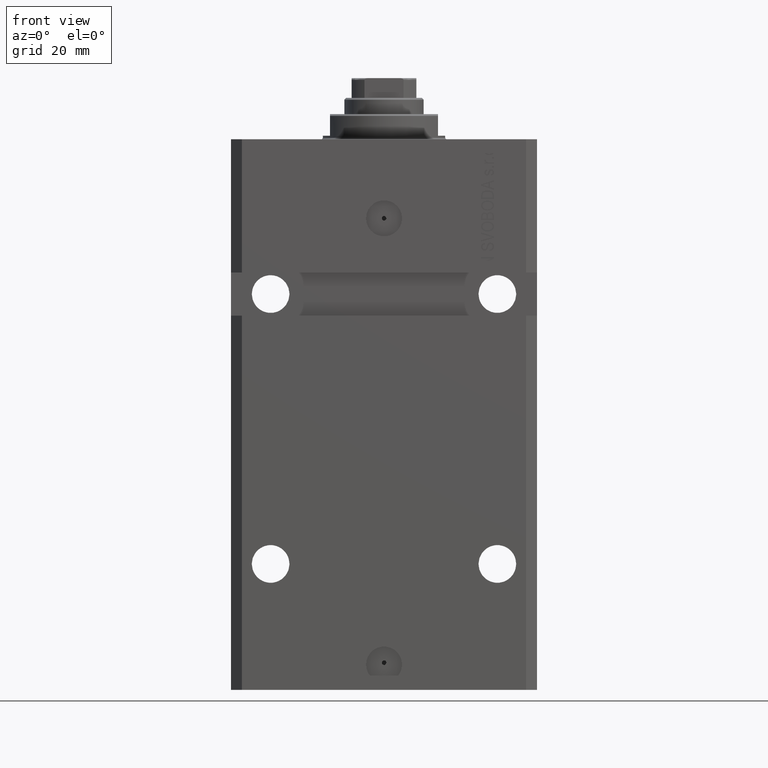
[diagram: clean part render]
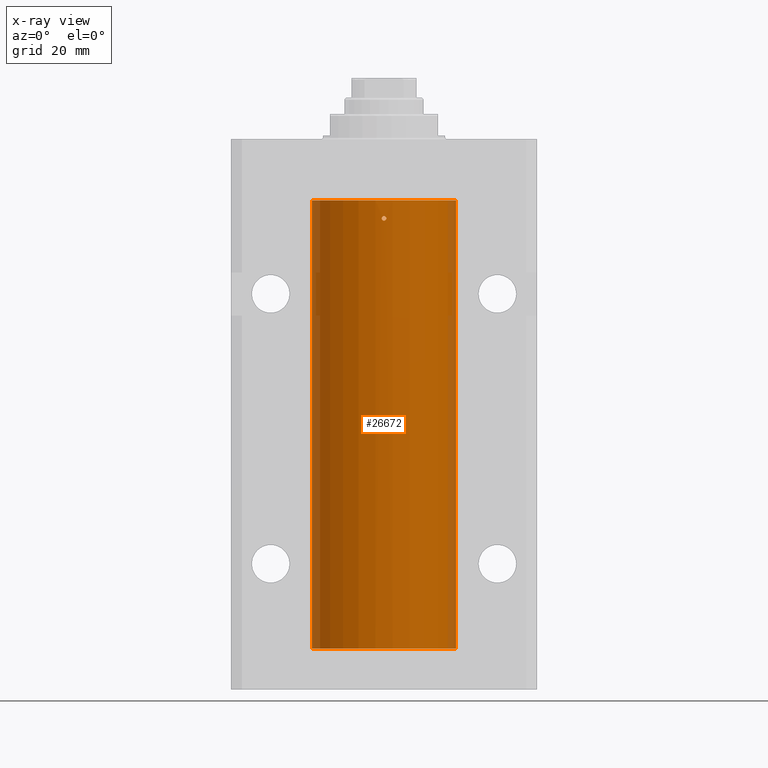
[diagram: x-ray — body ghosted, one internal face saturated and labeled with its STEP entity id]
A machine part, front view, then the same camera in x-ray: the body is ghosted and one INTERNAL B-rep face — a face not visible from any outside direction — is saturated and labeled: STEP entity #26672.
In plain terms, the highlighted cylindrical surface (partial cylindrical patch) has radius 20 mm, axis along (0, 0, 1).
Its self-contained STEP definition (entity closure, byte-faithful):
#308 = VERTEX_POINT ( 'NONE', #9522 ) ;
#961 = B_SPLINE_CURVE_WITH_KNOTS ( 'NONE', 3,
 ( #44034, #8269, #44528, #14858, #15578, #45012, #10967, #22130, #36982, #11694 ),
 .UNSPECIFIED., .F., .F.,
 ( 4, 2, 2, 2, 4 ),
 ( 0.001954154509844256270, 0.002442582466643829480, 0.002931010423443403123, 0.003419438380242976333, 0.003907866337042549543 ),
 .UNSPECIFIED. ) ;
#969 = ORIENTED_EDGE ( 'NONE', *, *, #3772, .T. ) ;
#1052 = CARTESIAN_POINT ( 'NONE',  ( 0.6250000000000026645, -19.99023198964934522, -22.00000000000000000 ) ) ;
#1289 = CARTESIAN_POINT ( 'NONE',  ( -0.6249999999998574474, -19.99023198964934878, -21.83683113816865529 ) ) ;
#1453 = CARTESIAN_POINT ( 'NONE',  ( 0.1643369734423495987, -20.00000429769607280, -22.62513752632251851 ) ) ;
#1532 = CARTESIAN_POINT ( 'NONE',  ( 0.4995363768272698679, -19.99384383563509360, -21.61563220462100432 ) ) ;
#2528 = CARTESIAN_POINT ( 'NONE',  ( -19.99023630310506761, -0.6248620367829522682, -24.16538138329532259 ) ) ;
#3002 = CARTESIAN_POINT ( 'NONE',  ( -20.00000000000000355, -0.1631318982819147112, -24.62500000000014566 ) ) ;
#3772 = EDGE_CURVE ( 'NONE', #4178, #8815, #21630, .T. ) ;
#4178 = VERTEX_POINT ( 'NONE', #12813 ) ;
#4244 = ORIENTED_EDGE ( 'NONE', *, *, #11139, .T. ) ;
#5115 = CARTESIAN_POINT ( 'NONE',  ( -0.3270944962368909081, -19.99765679051705902, -22.55695103748945129 ) ) ;
#5356 = CARTESIAN_POINT ( 'NONE',  ( 0.5570899181683264256, -19.99257333899569744, -22.32695694742785619 ) ) ;
#6566 = EDGE_CURVE ( 'NONE', #14972, #4178, #961, .T. ) ;
#6899 = CARTESIAN_POINT ( 'NONE',  ( -19.99767054355995555, -0.3263099029014763230, -24.55741108240767190 ) ) ;
#8118 = CARTESIAN_POINT ( 'NONE',  ( 0.1632920704146597346, -19.99999818881353164, -21.37505795797077823 ) ) ;
#8269 = CARTESIAN_POINT ( 'NONE',  ( -20.00000000000000355, -0.1631318982819169039, -139.6250000000001990 ) ) ;
#8739 = CARTESIAN_POINT ( 'NONE',  ( -20.00000000000000000, 2.449293598294706513E-15, -141.5999999999999943 ) ) ;
#8764 = EDGE_CURVE ( 'NONE', #40654, #10552, #18141, .T. ) ;
#8815 = VERTEX_POINT ( 'NONE', #36321 ) ;
#9346 = DIRECTION ( 'NONE',  ( 0.000000000000000000, 0.000000000000000000, 1.000000000000000000 ) ) ;
#9522 = CARTESIAN_POINT ( 'NONE',  ( -20.00000000000000000, -2.867584836844214272E-15, -23.37500000000000000 ) ) ;
#10515 = CARTESIAN_POINT ( 'NONE',  ( 0.000000000000000000, 0.000000000000000000, -141.5999999999999943 ) ) ;
#10551 = CARTESIAN_POINT ( 'NONE',  ( 20.00000000000000000, 0.000000000000000000, -17.00000000000000000 ) ) ;
#10552 = VERTEX_POINT ( 'NONE', #47399 ) ;
#10967 = CARTESIAN_POINT ( 'NONE',  ( -19.99255948581289033, -0.5575529953197855271, -138.6738333567126915 ) ) ;
#11139 = EDGE_CURVE ( 'NONE', #26280, #24008, #29788, .T. ) ;
#11654 = CIRCLE ( 'NONE', #45844, 20.00000000000000000 ) ;
#11694 = CARTESIAN_POINT ( 'NONE',  ( -20.00000000000000000, -1.756252550797319649E-14, -138.3749999999999716 ) ) ;
#11751 = EDGE_CURVE ( 'NONE', #40654, #14972, #34820, .T. ) ;
#12016 = CARTESIAN_POINT ( 'NONE',  ( -0.1628481006860607039, -20.00000180872260813, -21.37494212087287337 ) ) ;
#12338 = EDGE_LOOP ( 'NONE', ( #20800, #4244 ) ) ;
#12741 = CARTESIAN_POINT ( 'NONE',  ( -0.6250000000033326675, -19.99023198964924219, -21.99999999999967315 ) ) ;
#12813 = CARTESIAN_POINT ( 'NONE',  ( -20.00000000000000000, -1.756252550797319649E-14, -138.3749999999999716 ) ) ;
#12870 = DIRECTION ( 'NONE',  ( -0.000000000000000000, -0.000000000000000000, 1.000000000000000000 ) ) ;
#13132 = CARTESIAN_POINT ( 'NONE',  ( 0.6250000000000026645, -19.99023198964934522, -22.16515421183406076 ) ) ;
#13890 = ORIENTED_EDGE ( 'NONE', *, *, #6566, .T. ) ;
#14363 = VECTOR ( 'NONE', #19728, 1000.000000000000000 ) ;
#14641 = DIRECTION ( 'NONE',  ( 1.000000000000000000, 0.000000000000000000, 0.000000000000000000 ) ) ;
#14721 = DIRECTION ( 'NONE',  ( 0.000000000000000000, 0.000000000000000000, 1.000000000000000000 ) ) ;
#14858 = CARTESIAN_POINT ( 'NONE',  ( -19.99257639367449357, -0.5569510432580330184, -139.3270944862516671 ) ) ;
#14972 = VERTEX_POINT ( 'NONE', #22920 ) ;
#15578 = CARTESIAN_POINT ( 'NONE',  ( -19.99023630310506761, -0.6248620367829763600, -139.1653813832952835 ) ) ;
#16419 = CARTESIAN_POINT ( 'NONE',  ( -20.00000000000010303, 3.580159282543646009E-13, -24.62500000000332889 ) ) ;
#16774 = CARTESIAN_POINT ( 'NONE',  ( 0.6250000000000026645, -19.99023198964934522, -22.00000000000000000 ) ) ;
#17093 = AXIS2_PLACEMENT_3D ( 'NONE', #10515, #21920, #14641 ) ;
#17776 = DIRECTION ( 'NONE',  ( -0.000000000000000000, -0.000000000000000000, 1.000000000000000000 ) ) ;
#18141 = CIRCLE ( 'NONE', #25119, 20.00000000000000000 ) ;
#18324 = CARTESIAN_POINT ( 'NONE',  ( -20.00000000000000000, -0.1651542110816374143, -23.37500000000000355 ) ) ;
#19266 = EDGE_CURVE ( 'NONE', #10552, #44532, #39910, .T. ) ;
#19339 = VECTOR ( 'NONE', #40614, 1000.000000000000000 ) ;
#19545 = CARTESIAN_POINT ( 'NONE',  ( -0.3251162203622516289, -19.99769811469285230, -21.44128795971509405 ) ) ;
#19728 = DIRECTION ( 'NONE',  ( -0.000000000000000000, -0.000000000000000000, 1.000000000000000000 ) ) ;
#19733 = B_SPLINE_CURVE_WITH_KNOTS ( 'NONE', 3,
 ( #1052, #30503, #34874, #23418, #1532, #46293, #8118, #12016, #19545, #38505, #1289, #12741 ),
 .UNSPECIFIED., .F., .F.,
 ( 4, 2, 2, 2, 2, 4 ),
 ( 0.000000000000000000, 0.0002442693132668051579, 0.0004885386265336103158, 0.0009770772530672282210, 0.001465615879600846126, 0.001954154506134463815 ),
 .UNSPECIFIED. ) ;
#20800 = ORIENTED_EDGE ( 'NONE', *, *, #25010, .T. ) ;
#21630 = LINE ( 'NONE', #29682, #19339 ) ;
#21920 = DIRECTION ( 'NONE',  ( -0.000000000000000000, -0.000000000000000000, 1.000000000000000000 ) ) ;
#22130 = CARTESIAN_POINT ( 'NONE',  ( -19.99765984516762174, -0.3269569594424133196, -138.4429100894329565 ) ) ;
#22441 = ORIENTED_EDGE ( 'NONE', *, *, #47902, .T. ) ;
#22920 = CARTESIAN_POINT ( 'NONE',  ( -20.00000000000010303, 3.580159249456421507E-13, -139.6250000000033253 ) ) ;
#23120 = CARTESIAN_POINT ( 'NONE',  ( -20.00000000000000000, 2.449293598294706513E-15, -141.5999999999999943 ) ) ;
#23316 = LINE ( 'NONE', #30633, #45608 ) ;
#23418 = CARTESIAN_POINT ( 'NONE',  ( 0.5459793025363884889, -19.99257092108152634, -21.68496684531850249 ) ) ;
#24008 = VERTEX_POINT ( 'NONE', #46462 ) ;
#24884 = DIRECTION ( 'NONE',  ( 1.000000000000000000, 0.000000000000000000, 0.000000000000000000 ) ) ;
#24931 = ORIENTED_EDGE ( 'NONE', *, *, #31881, .T. ) ;
#25010 = EDGE_CURVE ( 'NONE', #24008, #26280, #19733, .T. ) ;
#25119 = AXIS2_PLACEMENT_3D ( 'NONE', #42658, #9346, #24884 ) ;
#26280 = VERTEX_POINT ( 'NONE', #42931 ) ;
#26672 = ADVANCED_FACE ( 'NONE', ( #28997, #43821 ), #37254, .F. ) ;
#26689 = EDGE_LOOP ( 'NONE', ( #34178, #39088, #13890, #969, #22441, #24931, #31459, #39345 ) ) ;
#26771 = B_SPLINE_CURVE_WITH_KNOTS ( 'NONE', 3,
 ( #16419, #3002, #6899, #43863, #2528, #47519, #43624, #47753, #18324, #44104 ),
 .UNSPECIFIED., .F., .F.,
 ( 4, 2, 2, 2, 4 ),
 ( 0.001954154509844215938, 0.002442582466643772668, 0.002931010423443329831, 0.003419438380242886995, 0.003907866337042443725 ),
 .UNSPECIFIED. ) ;
#27718 = VECTOR ( 'NONE', #17776, 1000.000000000000000 ) ;
#28997 = FACE_BOUND ( 'NONE', #12338, .T. ) ;
#29682 = CARTESIAN_POINT ( 'NONE',  ( -20.00000000000000000, 2.449293598294706513E-15, -141.5999999999999943 ) ) ;
#29788 = B_SPLINE_CURVE_WITH_KNOTS ( 'NONE', 3,
 ( #41360, #30896, #45729, #5115, #34793, #1453, #46450, #5356, #13132, #16774 ),
 .UNSPECIFIED., .F., .F.,
 ( 4, 2, 2, 2, 4 ),
 ( 0.001954154506134463815, 0.002442582461700956980, 0.002931010417267450145, 0.003419438372833943311, 0.003907866328400436476 ),
 .UNSPECIFIED. ) ;
#30475 = EDGE_CURVE ( 'NONE', #40072, #44532, #11654, .T. ) ;
#30503 = CARTESIAN_POINT ( 'NONE',  ( 0.6250000000000028866, -19.99023198964935233, -21.91740418326171280 ) ) ;
#30633 = CARTESIAN_POINT ( 'NONE',  ( -20.00000000000000000, 2.449293598294706513E-15, -141.5999999999999943 ) ) ;
#30896 = CARTESIAN_POINT ( 'NONE',  ( -0.6250000000001382228, -19.99023198964934167, -22.16313189841578080 ) ) ;
#31459 = ORIENTED_EDGE ( 'NONE', *, *, #30475, .T. ) ;
#31881 = EDGE_CURVE ( 'NONE', #308, #40072, #23316, .T. ) ;
#34178 = ORIENTED_EDGE ( 'NONE', *, *, #8764, .F. ) ;
#34793 = CARTESIAN_POINT ( 'NONE',  ( -0.1653813832397391104, -19.99999568866902067, -22.62486203736067125 ) ) ;
#34820 = LINE ( 'NONE', #23120, #14363 ) ;
#34874 = CARTESIAN_POINT ( 'NONE',  ( 0.6087363597162602780, -19.99075850180857117, -21.83635608258754957 ) ) ;
#36268 = CARTESIAN_POINT ( 'NONE',  ( 20.00000000000000000, 0.000000000000000000, -141.5999999999999943 ) ) ;
#36321 = CARTESIAN_POINT ( 'NONE',  ( -20.00000000000010303, 3.580159282543646009E-13, -24.62500000000332889 ) ) ;
#36607 = DIRECTION ( 'NONE',  ( 1.000000000000000000, 0.000000000000000000, 0.000000000000000000 ) ) ;
#36982 = CARTESIAN_POINT ( 'NONE',  ( -20.00000000000000000, -0.1651542110816556219, -138.3749999999999716 ) ) ;
#37254 = CYLINDRICAL_SURFACE ( 'NONE', #17093, 20.00000000000000000 ) ;
#38505 = CARTESIAN_POINT ( 'NONE',  ( -0.5585582113630487289, -19.99253968778482360, -21.67461956847272830 ) ) ;
#39088 = ORIENTED_EDGE ( 'NONE', *, *, #11751, .T. ) ;
#39345 = ORIENTED_EDGE ( 'NONE', *, *, #19266, .F. ) ;
#39910 = LINE ( 'NONE', #36268, #27718 ) ;
#40072 = VERTEX_POINT ( 'NONE', #41735 ) ;
#40241 = CARTESIAN_POINT ( 'NONE',  ( 0.000000000000000000, 0.000000000000000000, -17.00000000000000000 ) ) ;
#40614 = DIRECTION ( 'NONE',  ( -0.000000000000000000, -0.000000000000000000, 1.000000000000000000 ) ) ;
#40654 = VERTEX_POINT ( 'NONE', #8739 ) ;
#41360 = CARTESIAN_POINT ( 'NONE',  ( -0.6250000000033326675, -19.99023198964924219, -21.99999999999967315 ) ) ;
#41735 = CARTESIAN_POINT ( 'NONE',  ( -20.00000000000000000, 2.449293598294706513E-15, -17.00000000000000000 ) ) ;
#42658 = CARTESIAN_POINT ( 'NONE',  ( 0.000000000000000000, 0.000000000000000000, -141.5999999999999943 ) ) ;
#42931 = CARTESIAN_POINT ( 'NONE',  ( -0.6250000000033326675, -19.99023198964924219, -21.99999999999967315 ) ) ;
#43624 = CARTESIAN_POINT ( 'NONE',  ( -19.99255948581289744, -0.5575529953197640998, -23.67383335671266309 ) ) ;
#43821 = FACE_OUTER_BOUND ( 'NONE', #26689, .T. ) ;
#43863 = CARTESIAN_POINT ( 'NONE',  ( -19.99257639367449357, -0.5569510432580226933, -24.32709448625169557 ) ) ;
#44034 = CARTESIAN_POINT ( 'NONE',  ( -20.00000000000010303, 3.580159249456421507E-13, -139.6250000000033253 ) ) ;
#44104 = CARTESIAN_POINT ( 'NONE',  ( -20.00000000000000000, -2.867584836844214272E-15, -23.37500000000000000 ) ) ;
#44528 = CARTESIAN_POINT ( 'NONE',  ( -19.99767054355995555, -0.3263099029014812080, -139.5574110824076683 ) ) ;
#44532 = VERTEX_POINT ( 'NONE', #10551 ) ;
#45012 = CARTESIAN_POINT ( 'NONE',  ( -19.99022768983530440, -0.6251375268966054000, -138.8356630308821593 ) ) ;
#45608 = VECTOR ( 'NONE', #12870, 1000.000000000000000 ) ;
#45729 = CARTESIAN_POINT ( 'NONE',  ( -0.5574110886242996665, -19.99256263711735215, -22.32630989244538711 ) ) ;
#45844 = AXIS2_PLACEMENT_3D ( 'NONE', #40241, #14721, #36607 ) ;
#46293 = CARTESIAN_POINT ( 'NONE',  ( 0.3265143537867915002, -19.99766736494331809, -21.44267231150418240 ) ) ;
#46450 = CARTESIAN_POINT ( 'NONE',  ( 0.3261666526553446133, -19.99767369487616264, -22.55755299038902706 ) ) ;
#46462 = CARTESIAN_POINT ( 'NONE',  ( 0.6250000000000026645, -19.99023198964934522, -22.00000000000000000 ) ) ;
#47399 = CARTESIAN_POINT ( 'NONE',  ( 20.00000000000000000, 0.000000000000000000, -141.5999999999999943 ) ) ;
#47519 = CARTESIAN_POINT ( 'NONE',  ( -19.99022768983530440, -0.6251375268965866372, -23.83566303088218064 ) ) ;
#47753 = CARTESIAN_POINT ( 'NONE',  ( -19.99765984516761819, -0.3269569594423944459, -23.44291008943298849 ) ) ;
#47902 = EDGE_CURVE ( 'NONE', #8815, #308, #26771, .T. ) ;